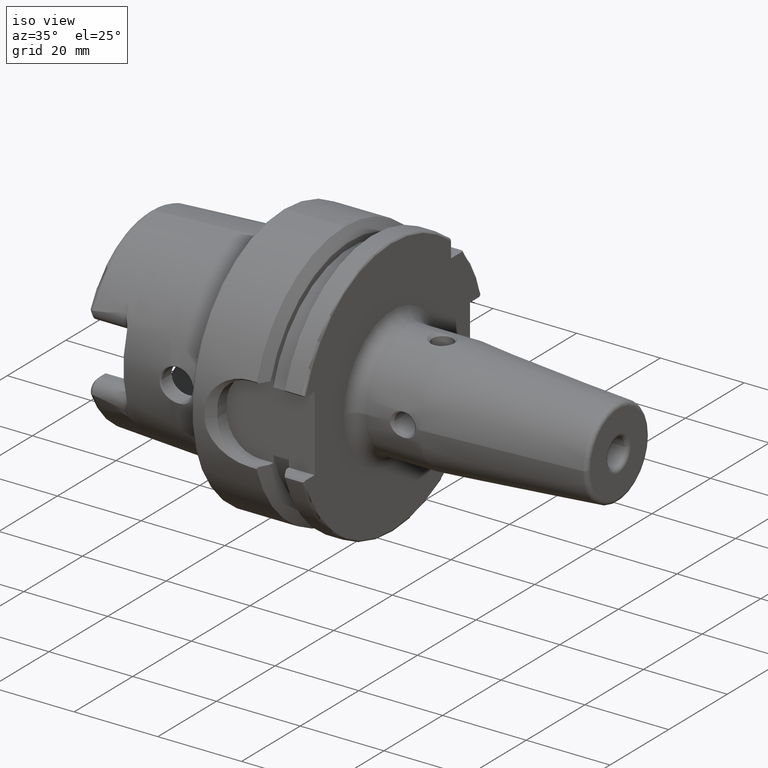
[diagram: clean part render]
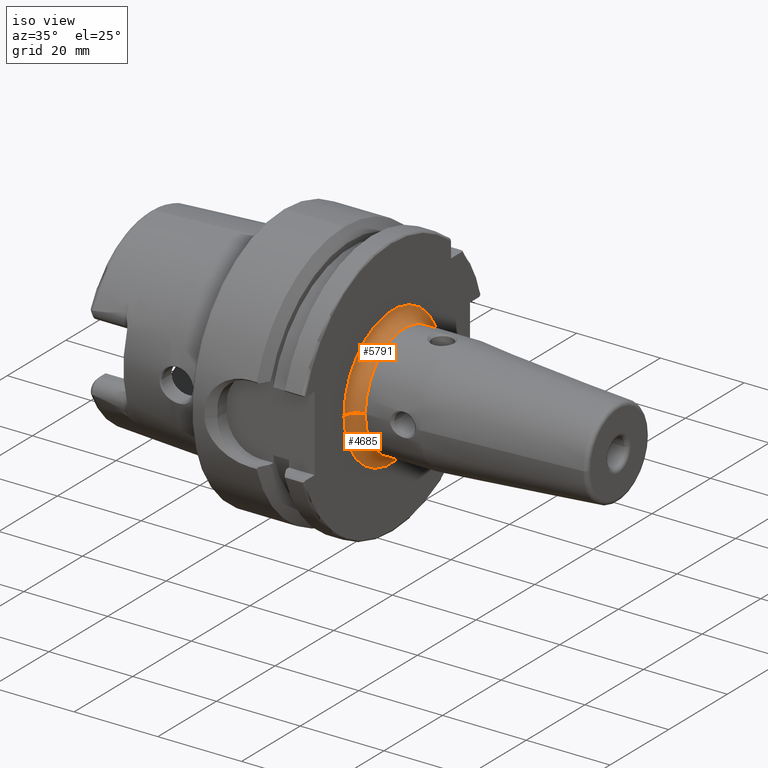
[diagram: same view with one multi-face feature highlighted, each face labeled with its STEP entity id]
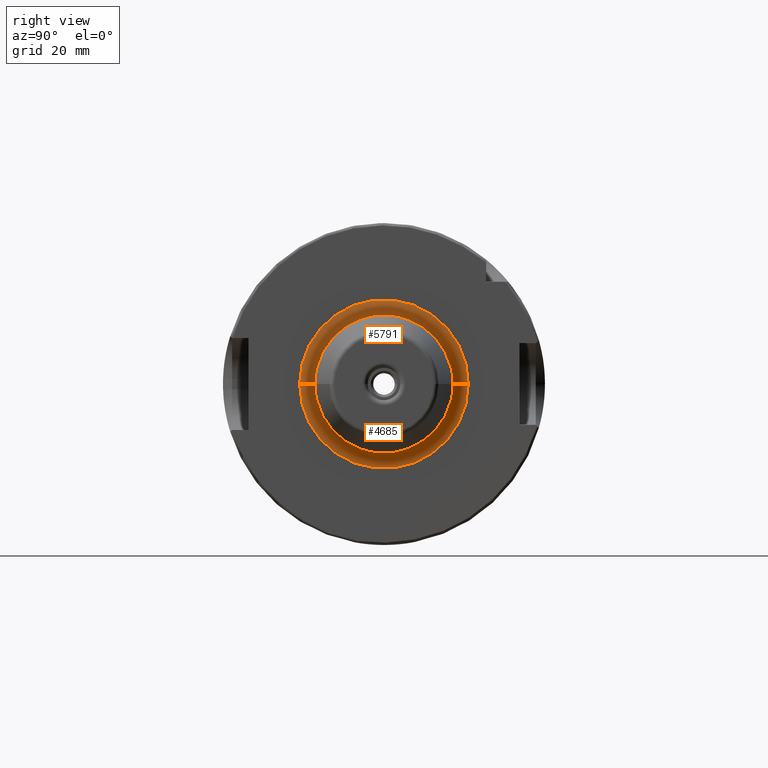
[diagram: same view with one multi-face feature highlighted, each face labeled with its STEP entity id]
A machine part, iso view. The highlighted faces form ONE feature: a constant-radius fillet chain: 2 tangent blend faces with common blend radius 2.9972 mm. The faces share edges in the B-rep.
A second angle (right view) of the same feature is appended — it is thin or edge-on in the first view.
Their STEP definitions:
[1] entity #5791 (Torus):
#1295=CARTESIAN_POINT('',(1.141622047244E0,-6.495E-1,3.387325142601E-13));
#1296=DIRECTION('',(0.E0,-5.215272658177E-13,-1.E0));
#1297=DIRECTION('',(-1.E0,6.181495993040E-13,0.E0));
#1298=AXIS2_PLACEMENT_3D('',#1295,#1296,#1297);
#1345=CARTESIAN_POINT('',(1.023622047244E0,0.E0,0.E0));
#1346=DIRECTION('',(1.E0,0.E0,0.E0));
#1347=DIRECTION('',(0.E0,1.E0,0.E0));
#1348=AXIS2_PLACEMENT_3D('',#1345,#1346,#1347);
#2256=CARTESIAN_POINT('',(1.141622047244E0,6.495E-1,-3.388279240513E-13));
#2257=DIRECTION('',(0.E0,5.216764520366E-13,1.E0));
#2258=DIRECTION('',(-1.E0,-6.181495993040E-13,0.E0));
#2259=AXIS2_PLACEMENT_3D('',#2256,#2257,#2258);
#2295=CARTESIAN_POINT('',(1.141622047244E0,0.E0,0.E0));
#2296=DIRECTION('',(1.E0,0.E0,0.E0));
#2297=DIRECTION('',(0.E0,1.E0,0.E0));
#2298=AXIS2_PLACEMENT_3D('',#2295,#2296,#2297);
#3242=CARTESIAN_POINT('',(1.023622047244E0,-6.495E-1,0.E0));
#3243=CARTESIAN_POINT('',(1.023622047244E0,6.495E-1,0.E0));
#3244=VERTEX_POINT('',#3242);
#3245=VERTEX_POINT('',#3243);
#3246=CARTESIAN_POINT('',(1.141622047244E0,-5.315E-1,0.E0));
#3247=CARTESIAN_POINT('',(1.141622047244E0,5.315E-1,0.E0));
#3248=VERTEX_POINT('',#3246);
#3249=VERTEX_POINT('',#3247);
#5779=CARTESIAN_POINT('',(1.141622047244E0,0.E0,0.E0));
#5780=DIRECTION('',(1.E0,0.E0,0.E0));
#5781=DIRECTION('',(0.E0,9.998671347890E-1,-1.630069841824E-2));
#5782=AXIS2_PLACEMENT_3D('',#5779,#5780,#5781);
#5783=TOROIDAL_SURFACE('',#5782,6.495E-1,1.18E-1);
#5784=ORIENTED_EDGE('',*,*,#4720,.F.);
#5785=ORIENTED_EDGE('',*,*,#4681,.T.);
#5787=ORIENTED_EDGE('',*,*,#5786,.T.);
#5788=ORIENTED_EDGE('',*,*,#4678,.F.);
#5789=EDGE_LOOP('',(#5784,#5785,#5787,#5788));
#5790=FACE_OUTER_BOUND('',#5789,.F.);
#5791=ADVANCED_FACE('',(#5790),#5783,.F.);
#1299=CIRCLE('',#1298,1.18E-1);
#1349=CIRCLE('',#1348,6.495E-1);
#2260=CIRCLE('',#2259,1.18E-1);
#2299=CIRCLE('',#2298,5.315E-1);
#4678=EDGE_CURVE('',#3244,#3248,#1299,.T.);
#4681=EDGE_CURVE('',#3245,#3249,#2260,.T.);
#4720=EDGE_CURVE('',#3245,#3244,#1349,.T.);
#5786=EDGE_CURVE('',#3249,#3248,#2299,.T.);
[2] entity #4685 (Torus):
#1191=CARTESIAN_POINT('',(1.141622047244E0,0.E0,0.E0));
#1192=DIRECTION('',(1.E0,0.E0,0.E0));
#1193=DIRECTION('',(0.E0,-1.E0,0.E0));
#1194=AXIS2_PLACEMENT_3D('',#1191,#1192,#1193);
#1295=CARTESIAN_POINT('',(1.141622047244E0,-6.495E-1,3.387325142601E-13));
#1296=DIRECTION('',(0.E0,-5.215272658177E-13,-1.E0));
#1297=DIRECTION('',(-1.E0,6.181495993040E-13,0.E0));
#1298=AXIS2_PLACEMENT_3D('',#1295,#1296,#1297);
#1340=CARTESIAN_POINT('',(1.023622047244E0,0.E0,0.E0));
#1341=DIRECTION('',(1.E0,0.E0,0.E0));
#1342=DIRECTION('',(0.E0,-1.E0,0.E0));
#1343=AXIS2_PLACEMENT_3D('',#1340,#1341,#1342);
#2256=CARTESIAN_POINT('',(1.141622047244E0,6.495E-1,-3.388279240513E-13));
#2257=DIRECTION('',(0.E0,5.216764520366E-13,1.E0));
#2258=DIRECTION('',(-1.E0,-6.181495993040E-13,0.E0));
#2259=AXIS2_PLACEMENT_3D('',#2256,#2257,#2258);
#3242=CARTESIAN_POINT('',(1.023622047244E0,-6.495E-1,0.E0));
#3243=CARTESIAN_POINT('',(1.023622047244E0,6.495E-1,0.E0));
#3244=VERTEX_POINT('',#3242);
#3245=VERTEX_POINT('',#3243);
#3246=CARTESIAN_POINT('',(1.141622047244E0,-5.315E-1,0.E0));
#3247=CARTESIAN_POINT('',(1.141622047244E0,5.315E-1,0.E0));
#3248=VERTEX_POINT('',#3246);
#3249=VERTEX_POINT('',#3247);
#4671=CARTESIAN_POINT('',(1.141622047244E0,0.E0,0.E0));
#4672=DIRECTION('',(1.E0,0.E0,0.E0));
#4673=DIRECTION('',(0.E0,-9.998671347890E-1,1.630069841824E-2));
#4674=AXIS2_PLACEMENT_3D('',#4671,#4672,#4673);
#4675=TOROIDAL_SURFACE('',#4674,6.495E-1,1.18E-1);
#4677=ORIENTED_EDGE('',*,*,#4676,.F.);
#4679=ORIENTED_EDGE('',*,*,#4678,.T.);
#4680=ORIENTED_EDGE('',*,*,#4567,.T.);
#4682=ORIENTED_EDGE('',*,*,#4681,.F.);
#4683=EDGE_LOOP('',(#4677,#4679,#4680,#4682));
#4684=FACE_OUTER_BOUND('',#4683,.F.);
#4685=ADVANCED_FACE('',(#4684),#4675,.F.);
#1195=CIRCLE('',#1194,5.315E-1);
#1299=CIRCLE('',#1298,1.18E-1);
#1344=CIRCLE('',#1343,6.495E-1);
#2260=CIRCLE('',#2259,1.18E-1);
#4567=EDGE_CURVE('',#3248,#3249,#1195,.T.);
#4676=EDGE_CURVE('',#3244,#3245,#1344,.T.);
#4678=EDGE_CURVE('',#3244,#3248,#1299,.T.);
#4681=EDGE_CURVE('',#3245,#3249,#2260,.T.);